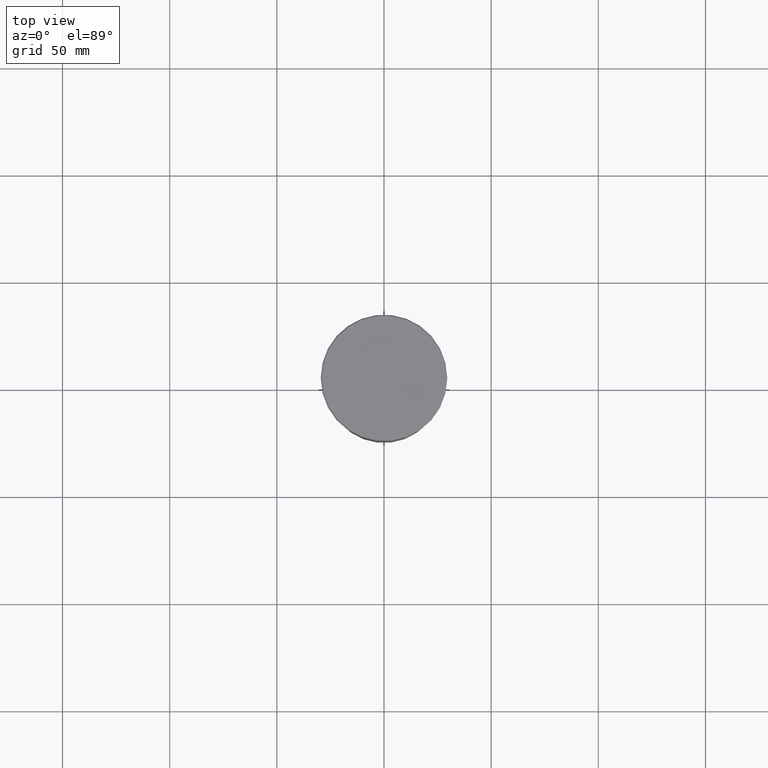
[diagram: clean part render]
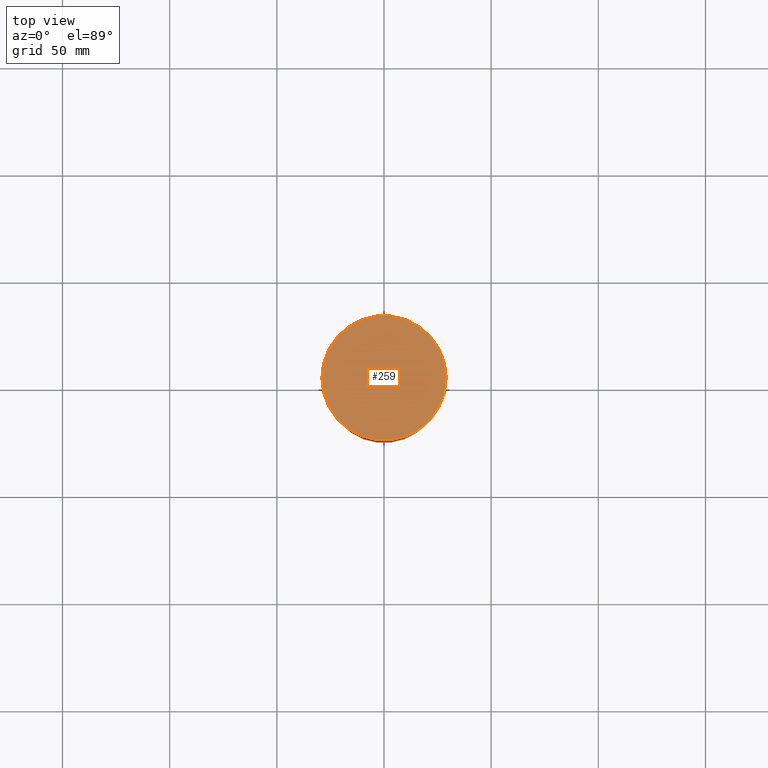
[diagram: same view with one face highlighted and labeled with its STEP entity id]
A machine part, top view. The second image highlights one B-rep face of the part: STEP entity #259.
In plain terms, the highlighted planar face has unit normal (0, -0, 1).
Its self-contained STEP definition (entity closure, byte-faithful):
#12 = AXIS2_PLACEMENT_3D ( 'NONE', #477, #270, #362 ) ;
#39 = ORIENTED_EDGE ( 'NONE', *, *, #902, .T. ) ;
#82 = DIRECTION ( 'NONE',  ( 1.000000000000000000, 0.000000000000000000, 0.000000000000000000 ) ) ;
#215 = CIRCLE ( 'NONE', #12, 28.99999999999988631 ) ;
#232 = PLANE ( 'NONE',  #511 ) ;
#259 = ADVANCED_FACE ( 'NONE', ( #1143 ), #232, .T. ) ;
#267 = VERTEX_POINT ( 'NONE', #1055 ) ;
#270 = DIRECTION ( 'NONE',  ( -0.000000000000000000, -0.000000000000000000, 1.000000000000000000 ) ) ;
#314 = CARTESIAN_POINT ( 'NONE',  ( 0.000000000000000000, 0.000000000000000000, 0.000000000000000000 ) ) ;
#362 = DIRECTION ( 'NONE',  ( 1.000000000000000000, 0.000000000000000000, 0.000000000000000000 ) ) ;
#392 = CARTESIAN_POINT ( 'NONE',  ( -28.99999999999988631, 0.000000000000000000, 0.000000000000000000 ) ) ;
#421 = AXIS2_PLACEMENT_3D ( 'NONE', #440, #820, #82 ) ;
#440 = CARTESIAN_POINT ( 'NONE',  ( 0.000000000000000000, 0.000000000000000000, 0.000000000000000000 ) ) ;
#477 = CARTESIAN_POINT ( 'NONE',  ( 0.000000000000000000, 0.000000000000000000, 0.000000000000000000 ) ) ;
#481 = DIRECTION ( 'NONE',  ( 0.000000000000000000, -0.000000000000000000, 1.000000000000000000 ) ) ;
#511 = AXIS2_PLACEMENT_3D ( 'NONE', #314, #481, #875 ) ;
#520 = VERTEX_POINT ( 'NONE', #392 ) ;
#603 = EDGE_CURVE ( 'NONE', #267, #520, #215, .T. ) ;
#766 = ORIENTED_EDGE ( 'NONE', *, *, #603, .T. ) ;
#820 = DIRECTION ( 'NONE',  ( -0.000000000000000000, -0.000000000000000000, 1.000000000000000000 ) ) ;
#875 = DIRECTION ( 'NONE',  ( 1.000000000000000000, 0.000000000000000000, 0.000000000000000000 ) ) ;
#893 = CIRCLE ( 'NONE', #421, 28.99999999999988631 ) ;
#902 = EDGE_CURVE ( 'NONE', #520, #267, #893, .T. ) ;
#918 = EDGE_LOOP ( 'NONE', ( #39, #766 ) ) ;
#1055 = CARTESIAN_POINT ( 'NONE',  ( 28.99999999999988631, 3.582091887506000717E-15, 0.000000000000000000 ) ) ;
#1143 = FACE_OUTER_BOUND ( 'NONE', #918, .T. ) ;